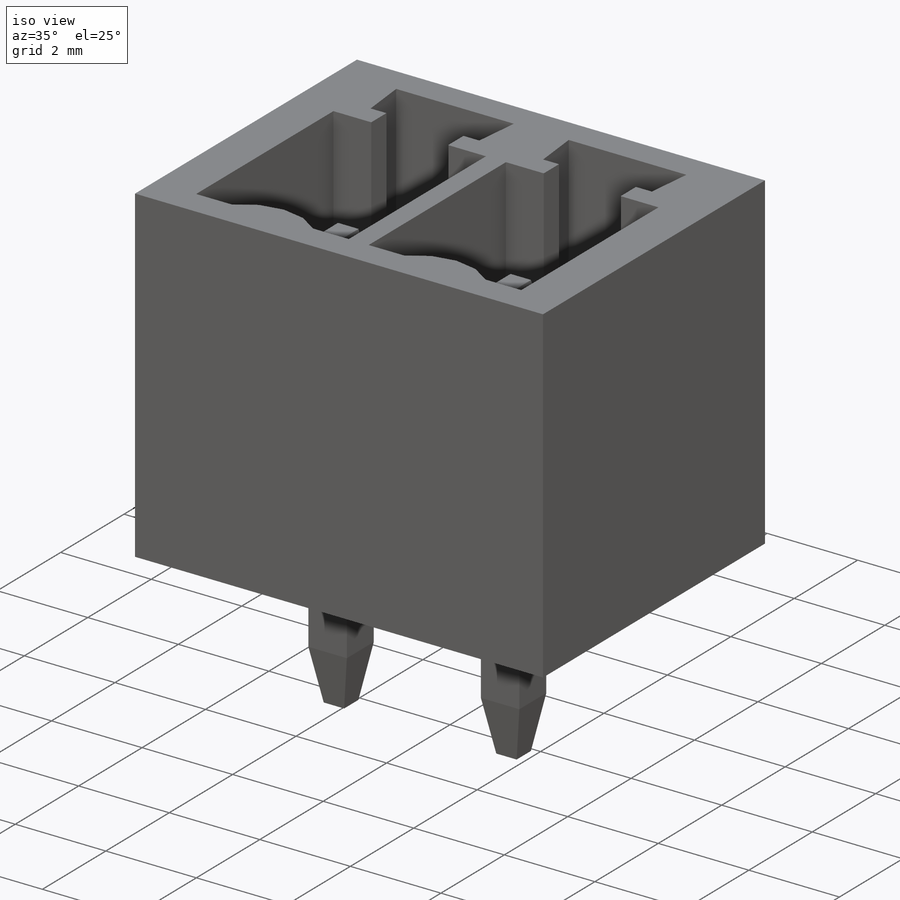
[diagram: iso view]
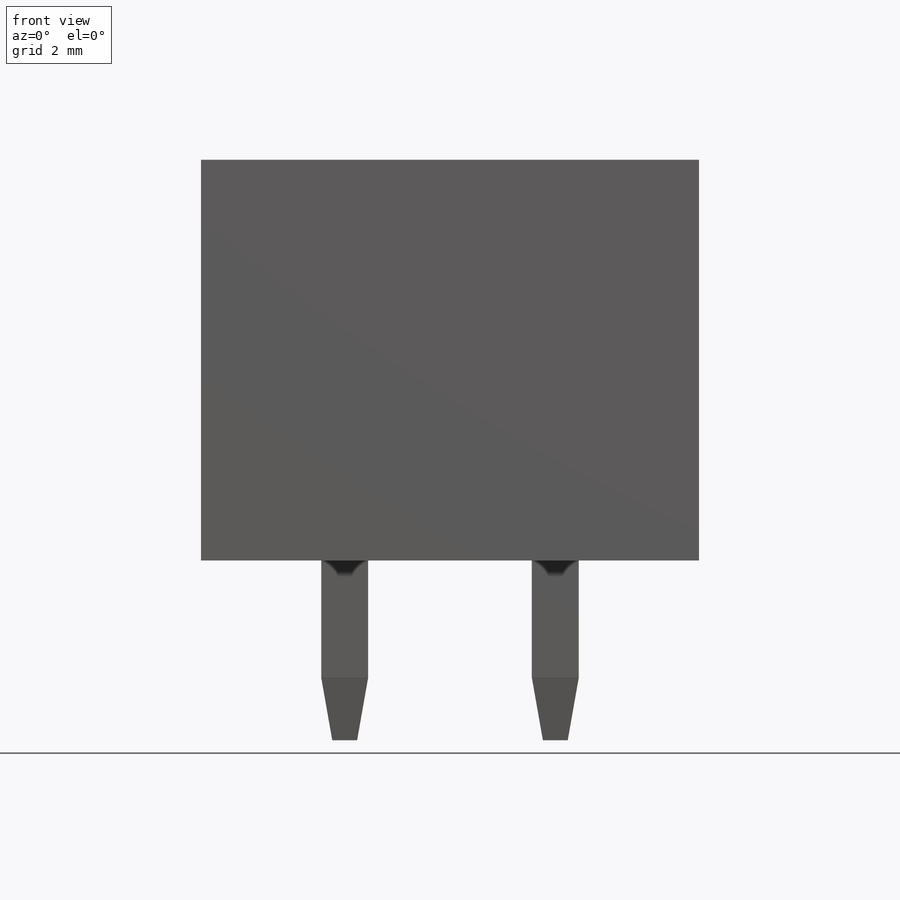
[diagram: front view]
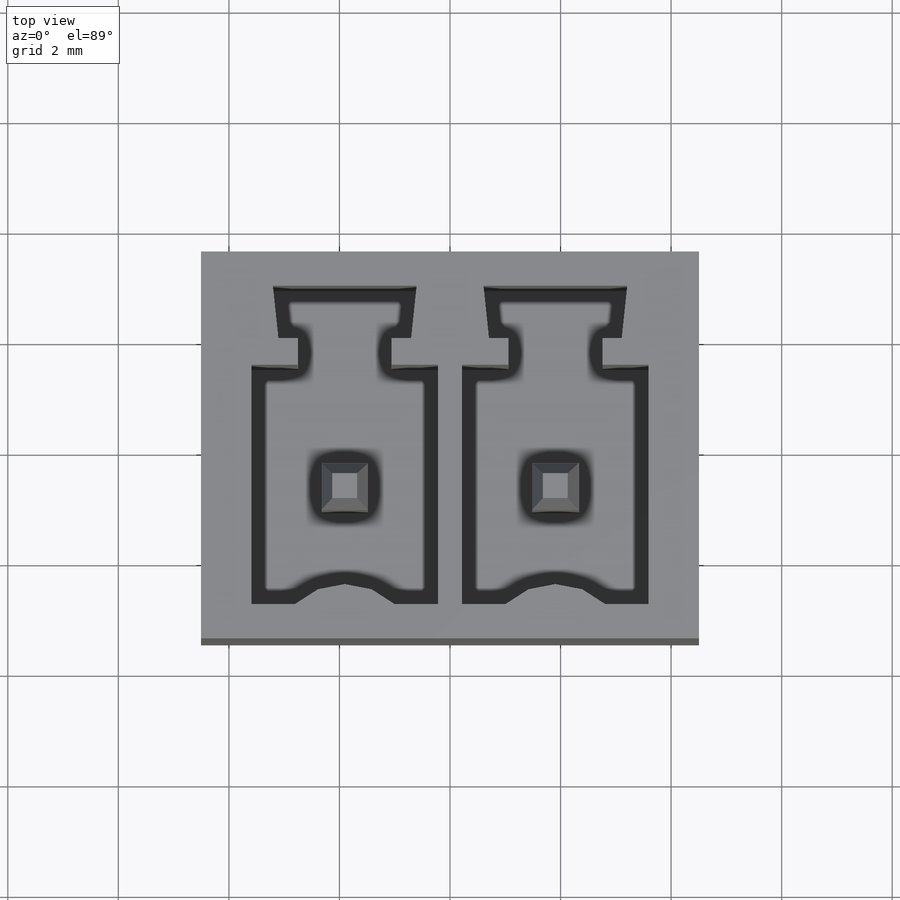
[diagram: top view]
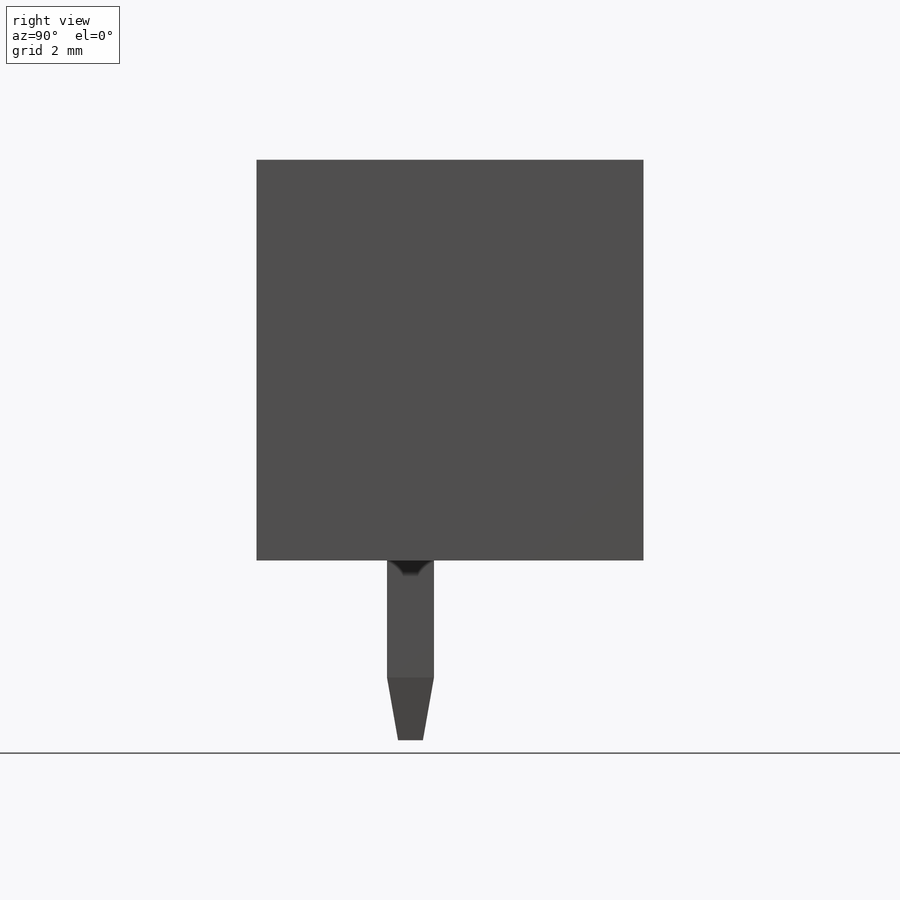
[diagram: right view]
SOLIDWORKS PART (.sldprt)
format: sldprt  version: not decoded by parser v0  size: 524,800 bytes
history: native  units: mm
features: sketch x4, extrude x2, cut_extrude x2, pattern_linear x2, material x1, chamfer x1 + 1 further entry (+12 scaffold rows collapsed)
feature tree (25):
  scaffold x12  (default folders/planes/origin — collapsed)
  material  "Material <not specified>"
  "Design Table"
  sketch  "Sketch1"  dims[DimB=9.01mm D1=7.0mm]
  extrude  "Boss-Extrude1"  Depth=7.25mm DimC=7.25mm
  sketch  "Sketch2"  dims[c1.D1=3.37mm c1.D2=0.48mm c1.D3=1.8mm c1.D4=0.98mm c1.D5=2.6mm c1.D6=0.62mm c2.D4=0.98mm c2.D7=0.62mm c2.D8=1.7mm c2.D9=2.6mm c2.D10=2.4mm c2.D11=4.33mm c2.D12=3.0mm]
  cut_extrude  "Cut-Extrude1"  Depth=5.45mm
  sketch  "Sketch3"  dims[c1.D1=0.8mm c1.D2=0.85mm c2.D1=0.8mm]
  cut_extrude  "Cut-Extrude2"  [1 undecoded]
  pattern_linear  "LPattern1"  Count1=2 Count2=1 Spacing1=3.81mm Spacing2=1mm
  sketch  "Sketch4"
  extrude  "Boss-Extrude2"  Depth=1.1mm
  chamfer  "Chamfer1"  Distance=0.2mm Angle=80deg
  pattern_linear  "LPattern2"  Count1=2 Count2=1 Spacing1=3.81mm Spacing2=1mm
decode coverage: 9 of 11 modeling features carry decoded parameters; 1 rows unclassified (native names shown)
note: 1 parameter value undecoded
note: suppression state not decoded; provenance and decode notes live in map.json
